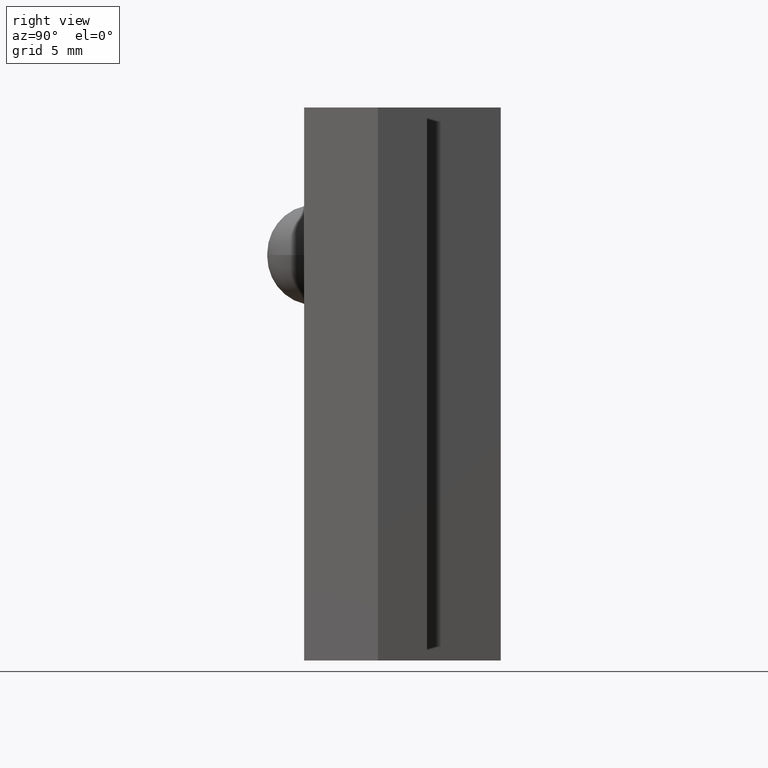
[diagram: clean part render]
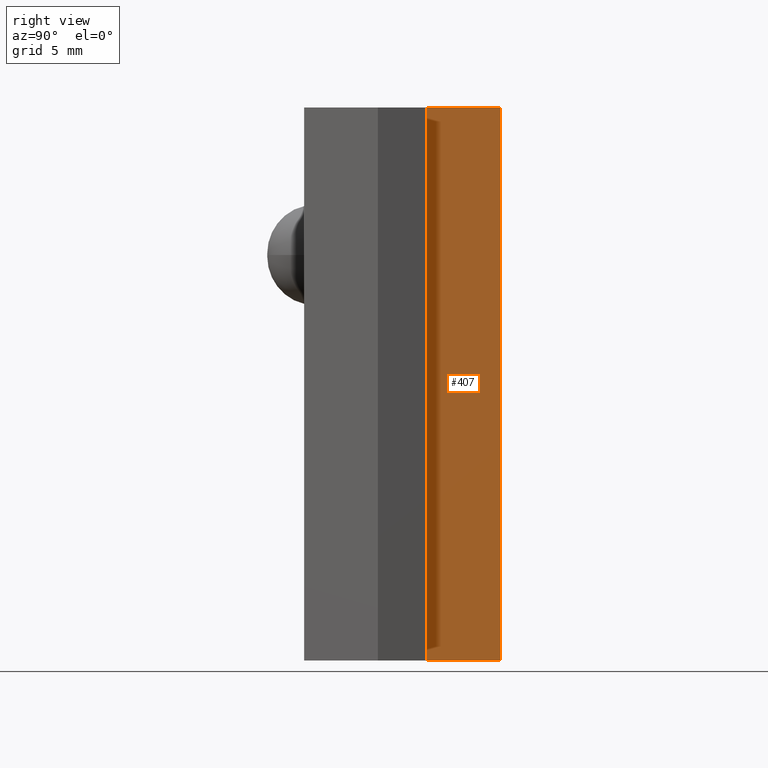
[diagram: same view with one face highlighted and labeled with its STEP entity id]
A machine part, right view. The second image highlights one B-rep face of the part: STEP entity #407.
In plain terms, the highlighted planar face has unit normal (-1, -0, 0).
Its self-contained STEP definition (entity closure, byte-faithful):
#9 = CARTESIAN_POINT ( 'NONE',  ( 3.899999999999997200, 4.999999999999999100, 22.50000000000000000 ) ) ;
#19 = CARTESIAN_POINT ( 'NONE',  ( 3.899999999999996400, 8.000000000000000000, 22.50000000000000000 ) ) ;
#82 = DIRECTION ( 'NONE',  ( -0.0000000000000000000, -0.0000000000000000000, -1.000000000000000000 ) ) ;
#87 = CARTESIAN_POINT ( 'NONE',  ( 3.899999999999997200, 4.999999999999999100, 22.50000000000000000 ) ) ;
#119 = DIRECTION ( 'NONE',  ( -0.0000000000000000000, -0.0000000000000000000, -1.000000000000000000 ) ) ;
#124 = CARTESIAN_POINT ( 'NONE',  ( 3.899999999999997200, 4.999999999999999100, 0.0000000000000000000 ) ) ;
#125 = DIRECTION ( 'NONE',  ( -2.891205793294677800E-016, 1.000000000000000000, 0.0000000000000000000 ) ) ;
#130 = DIRECTION ( 'NONE',  ( -2.891205793294677800E-016, 1.000000000000000000, 0.0000000000000000000 ) ) ;
#147 = LINE ( 'NONE', #19, #149 ) ;
#149 = VECTOR ( 'NONE', #119, 1000.000000000000000 ) ;
#171 = LINE ( 'NONE', #9, #519 ) ;
#175 = LINE ( 'NONE', #87, #384 ) ;
#257 = EDGE_CURVE ( 'NONE', #505, #500, #175, .T. ) ;
#263 = AXIS2_PLACEMENT_3D ( 'NONE', #442, #437, #424 ) ;
#295 = EDGE_CURVE ( 'NONE', #490, #494, #147, .T. ) ;
#313 = EDGE_CURVE ( 'NONE', #505, #490, #171, .T. ) ;
#314 = EDGE_CURVE ( 'NONE', #500, #494, #520, .T. ) ;
#322 = ORIENTED_EDGE ( 'NONE', *, *, #257, .T. ) ;
#340 = ORIENTED_EDGE ( 'NONE', *, *, #313, .F. ) ;
#343 = ORIENTED_EDGE ( 'NONE', *, *, #314, .T. ) ;
#354 = ORIENTED_EDGE ( 'NONE', *, *, #295, .F. ) ;
#362 = EDGE_LOOP ( 'NONE', ( #343, #354, #340, #322 ) ) ;
#384 = VECTOR ( 'NONE', #82, 1000.000000000000000 ) ;
#407 = ADVANCED_FACE ( 'NONE', ( #553 ), #441, .F. ) ;
#424 = DIRECTION ( 'NONE',  ( 2.891205793294678300E-016, -1.000000000000000000, 0.0000000000000000000 ) ) ;
#437 = DIRECTION ( 'NONE',  ( -1.000000000000000000, -2.891205793294678300E-016, 0.0000000000000000000 ) ) ;
#441 = PLANE ( 'NONE',  #263 ) ;
#442 = CARTESIAN_POINT ( 'NONE',  ( 3.899999999999997200, 4.999999999999999100, 22.50000000000000000 ) ) ;
#461 = CARTESIAN_POINT ( 'NONE',  ( 3.899999999999997200, 4.999999999999999100, 22.50000000000000000 ) ) ;
#462 = CARTESIAN_POINT ( 'NONE',  ( 3.899999999999996400, 8.000000000000000000, 0.0000000000000000000 ) ) ;
#463 = CARTESIAN_POINT ( 'NONE',  ( 3.899999999999997200, 4.999999999999999100, 0.0000000000000000000 ) ) ;
#473 = CARTESIAN_POINT ( 'NONE',  ( 3.899999999999996400, 8.000000000000000000, 22.50000000000000000 ) ) ;
#490 = VERTEX_POINT ( 'NONE', #473 ) ;
#494 = VERTEX_POINT ( 'NONE', #462 ) ;
#500 = VERTEX_POINT ( 'NONE', #463 ) ;
#505 = VERTEX_POINT ( 'NONE', #461 ) ;
#519 = VECTOR ( 'NONE', #125, 1000.000000000000000 ) ;
#520 = LINE ( 'NONE', #124, #521 ) ;
#521 = VECTOR ( 'NONE', #130, 1000.000000000000000 ) ;
#553 = FACE_OUTER_BOUND ( 'NONE', #362, .T. ) ;